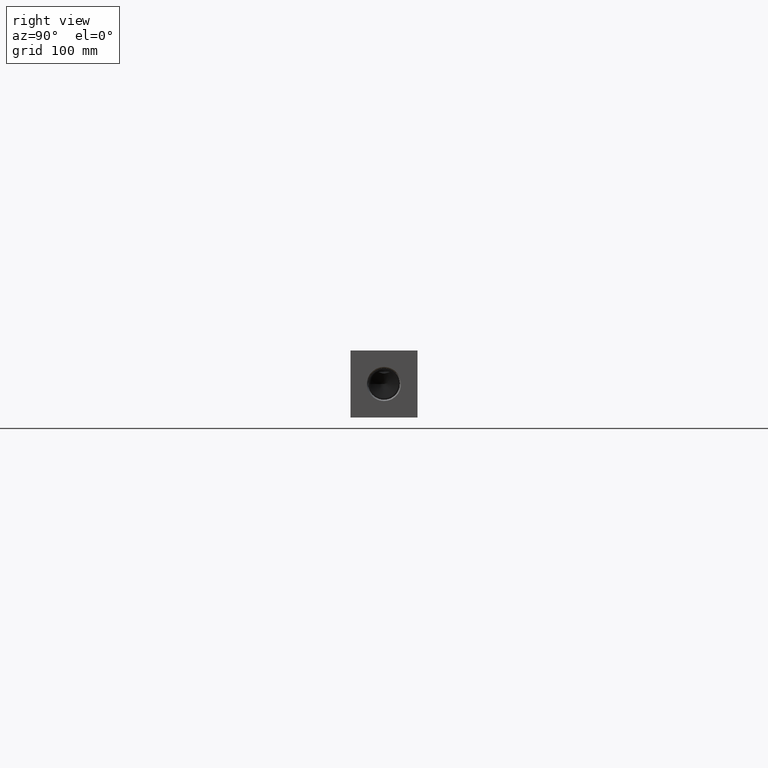
[diagram: clean part render]
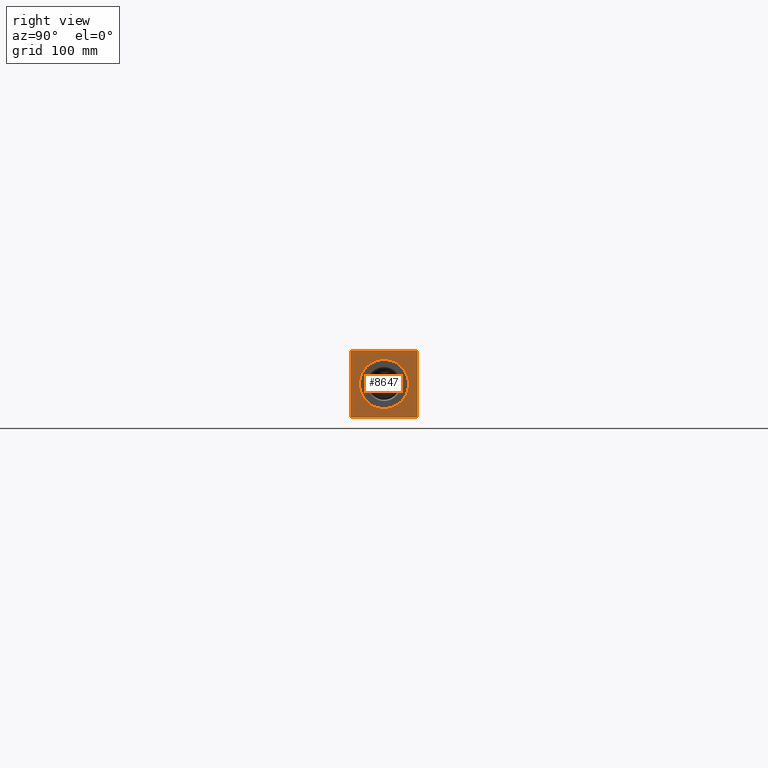
[diagram: same view with one face highlighted and labeled with its STEP entity id]
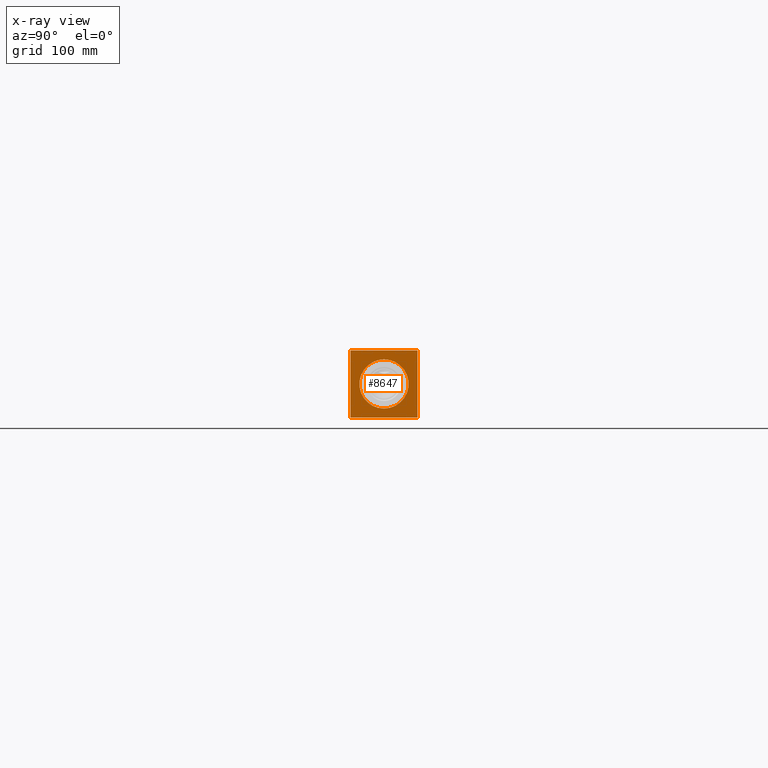
[diagram: x-ray of the same camera — body ghosted, the highlighted face saturated]
A machine part, right view. The second image highlights one B-rep face of the part: STEP entity #8647.
The next image is the same camera in x-ray: the body ghosted, the highlighted face saturated — about 0% of this face is hidden behind the body in this view.
In plain terms, the highlighted planar face has unit normal (1, 0, 0).
Its self-contained STEP definition (entity closure, byte-faithful):
#355=CIRCLE('',#9214,21.0185);
#356=CIRCLE('',#9215,21.0185);
#453=FACE_BOUND('',#1651,.T.);
#684=PLANE('',#9258);
#1132=FACE_OUTER_BOUND('',#1650,.T.);
#1650=EDGE_LOOP('',(#7780,#7781,#7782,#7783));
#1651=EDGE_LOOP('',(#7784,#7785));
#1896=LINE('',#13313,#2635);
#2396=LINE('',#15076,#3135);
#2397=LINE('',#15079,#3136);
#2398=LINE('',#15080,#3137);
#2635=VECTOR('',#9613,10.);
#3135=VECTOR('',#11185,10.);
#3136=VECTOR('',#11188,10.);
#3137=VECTOR('',#11189,10.);
#3642=VERTEX_POINT('',#13310);
#3643=VERTEX_POINT('',#13312);
#4144=VERTEX_POINT('',#14985);
#4145=VERTEX_POINT('',#14986);
#4174=VERTEX_POINT('',#15074);
#4175=VERTEX_POINT('',#15078);
#4603=EDGE_CURVE('',#3642,#3643,#1896,.T.);
#5338=EDGE_CURVE('',#4144,#4145,#355,.T.);
#5339=EDGE_CURVE('',#4145,#4144,#356,.T.);
#5382=EDGE_CURVE('',#4174,#3643,#2396,.T.);
#5383=EDGE_CURVE('',#4175,#4174,#2397,.T.);
#5384=EDGE_CURVE('',#4175,#3642,#2398,.T.);
#7780=ORIENTED_EDGE('',*,*,#5383,.T.);
#7781=ORIENTED_EDGE('',*,*,#5382,.T.);
#7782=ORIENTED_EDGE('',*,*,#4603,.F.);
#7783=ORIENTED_EDGE('',*,*,#5384,.F.);
#7784=ORIENTED_EDGE('',*,*,#5338,.T.);
#7785=ORIENTED_EDGE('',*,*,#5339,.T.);
#8647=ADVANCED_FACE('',(#1132,#453),#684,.T.);
#9214=AXIS2_PLACEMENT_3D('',#14987,#11081,#11082);
#9215=AXIS2_PLACEMENT_3D('',#14988,#11083,#11084);
#9258=AXIS2_PLACEMENT_3D('',#15077,#11186,#11187);
#9613=DIRECTION('',(0.,1.,0.));
#11081=DIRECTION('center_axis',(-1.,0.,0.));
#11082=DIRECTION('ref_axis',(0.,0.,-1.));
#11083=DIRECTION('center_axis',(-1.,0.,0.));
#11084=DIRECTION('ref_axis',(0.,0.,-1.));
#11185=DIRECTION('',(0.,0.,1.));
#11186=DIRECTION('center_axis',(1.,0.,0.));
#11187=DIRECTION('ref_axis',(0.,1.,0.));
#11188=DIRECTION('',(0.,1.,0.));
#11189=DIRECTION('',(0.,0.,1.));
#13310=CARTESIAN_POINT('',(619.125,0.,57.15));
#13312=CARTESIAN_POINT('',(619.125,57.15,57.15));
#13313=CARTESIAN_POINT('',(619.125,0.,57.15));
#14985=CARTESIAN_POINT('',(619.125,28.575,7.5565));
#14986=CARTESIAN_POINT('',(619.125,28.575,49.5935));
#14987=CARTESIAN_POINT('Origin',(619.125,28.575,28.575));
#14988=CARTESIAN_POINT('Origin',(619.125,28.575,28.575));
#15074=CARTESIAN_POINT('',(619.125,57.15,0.));
#15076=CARTESIAN_POINT('',(619.125,57.15,0.));
#15077=CARTESIAN_POINT('Origin',(619.125,0.,0.));
#15078=CARTESIAN_POINT('',(619.125,0.,0.));
#15079=CARTESIAN_POINT('',(619.125,0.,0.));
#15080=CARTESIAN_POINT('',(619.125,0.,0.));